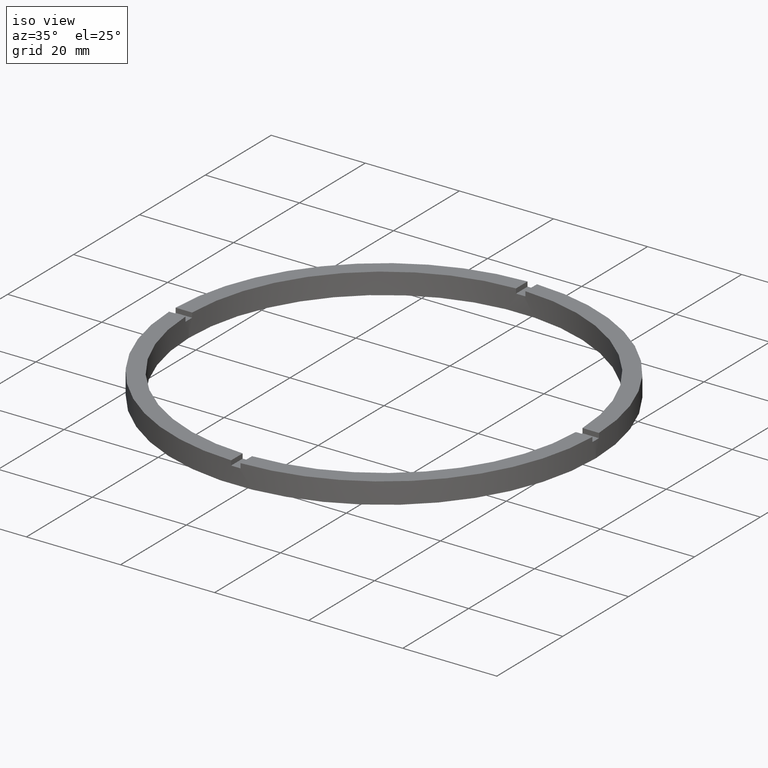
[diagram: clean part render]
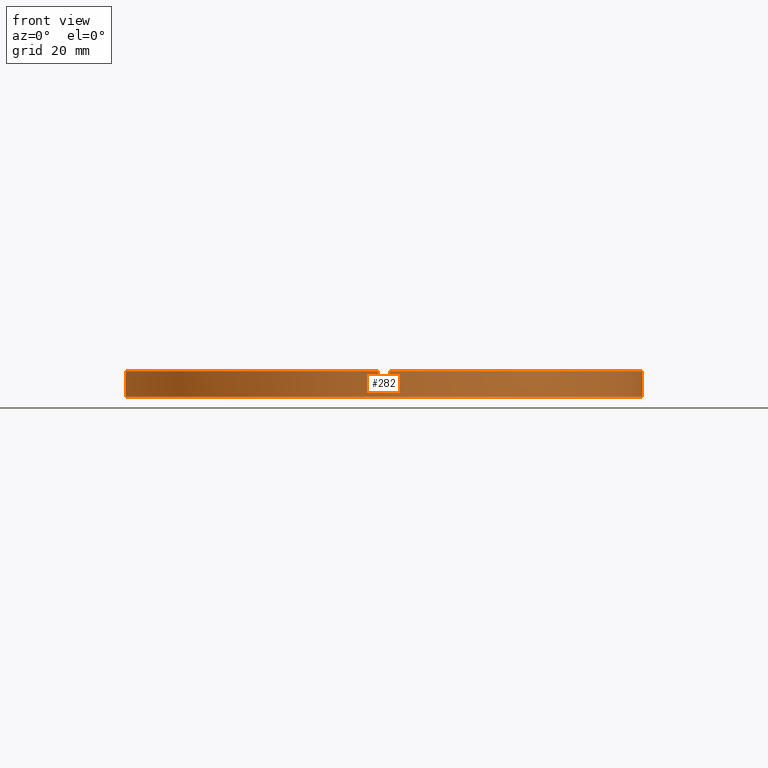
[diagram: tour spotlight — one face highlighted and labeled with its STEP entity id]
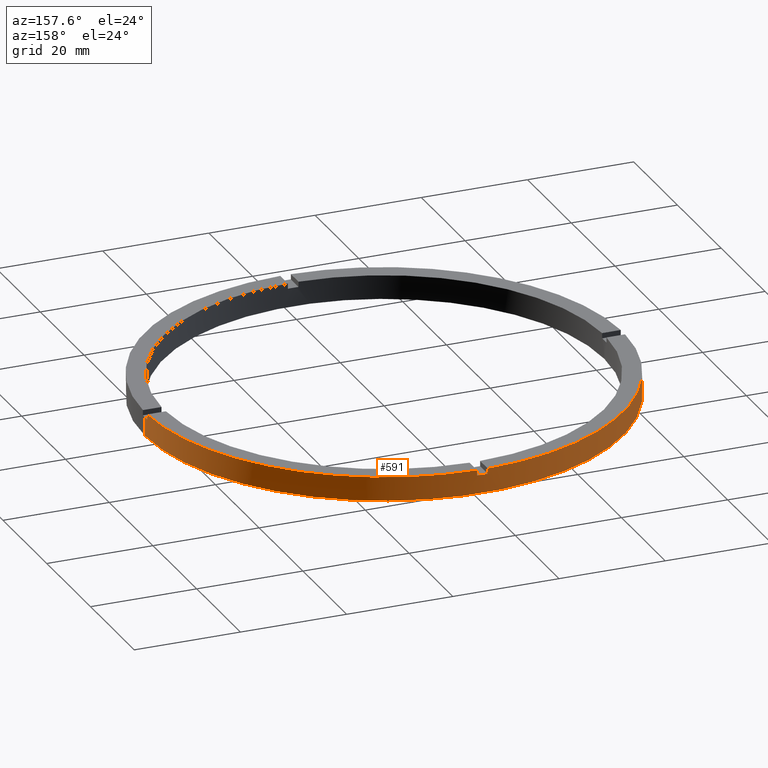
[diagram: tour spotlight — one face highlighted and labeled with its STEP entity id]
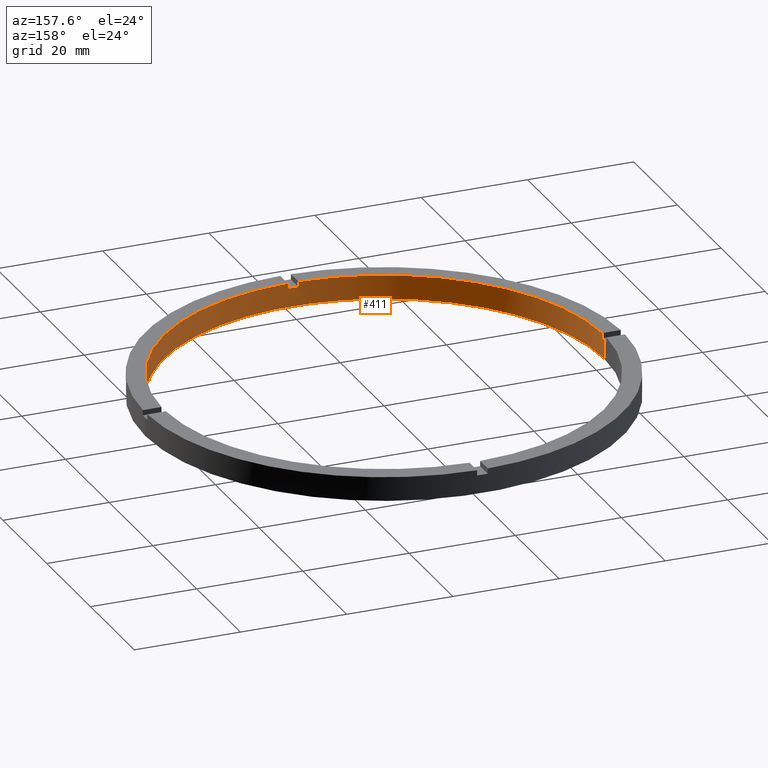
[diagram: tour spotlight — one face highlighted and labeled with its STEP entity id]
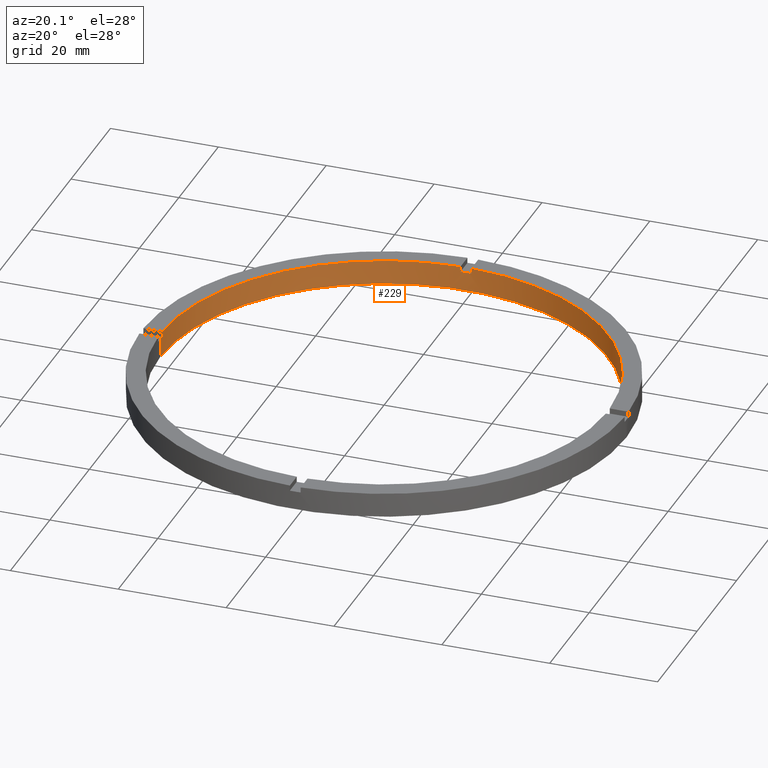
[diagram: tour spotlight — one face highlighted and labeled with its STEP entity id]
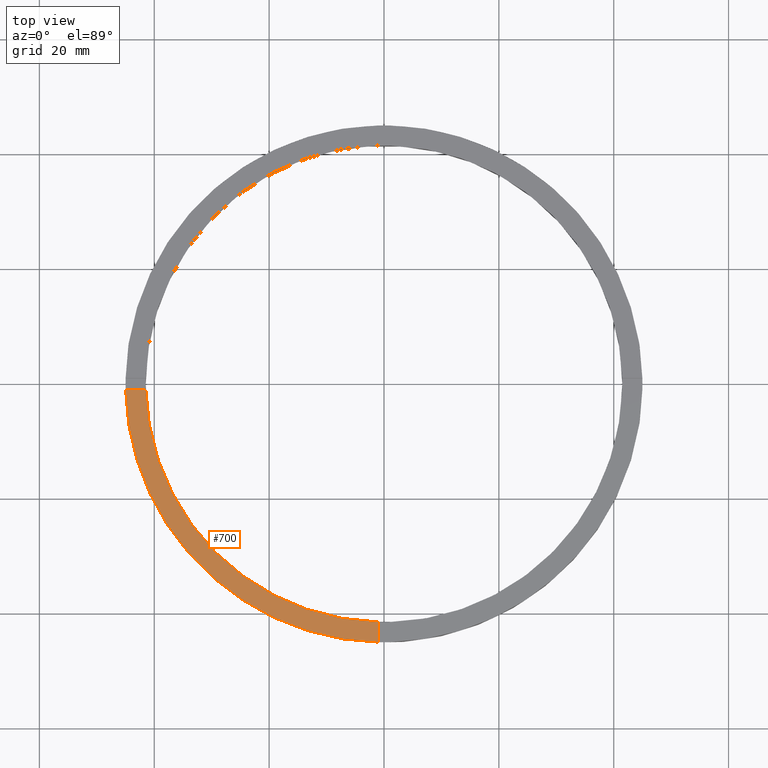
[diagram: tour spotlight — one face highlighted and labeled with its STEP entity id]
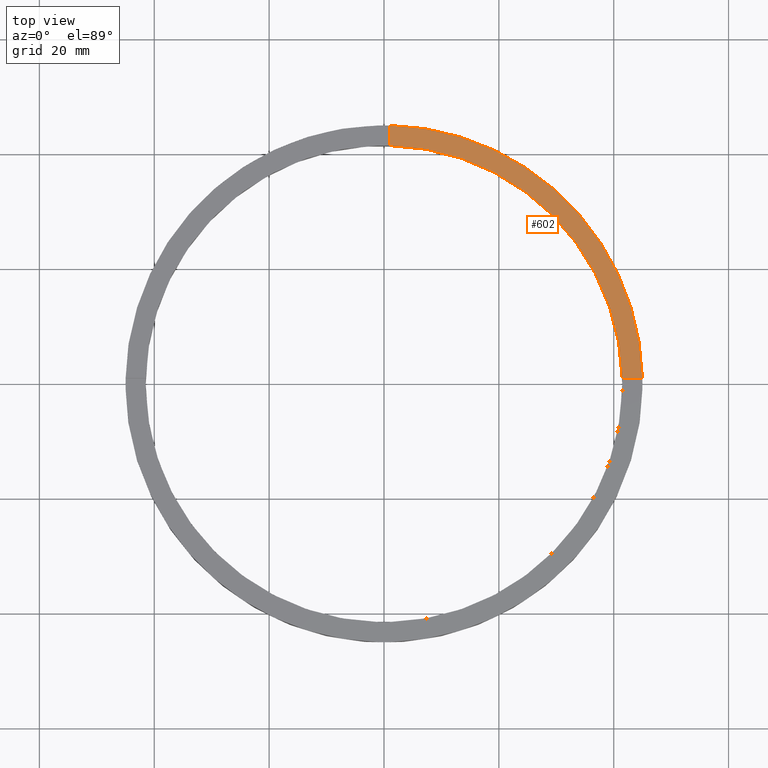
[diagram: tour spotlight — one face highlighted and labeled with its STEP entity id]
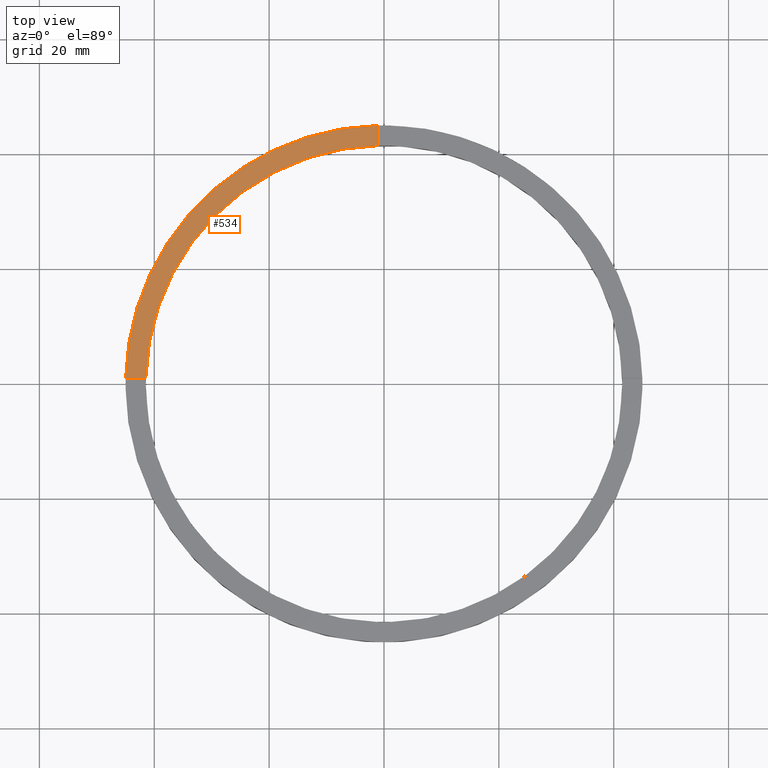
[diagram: tour spotlight — one face highlighted and labeled with its STEP entity id]
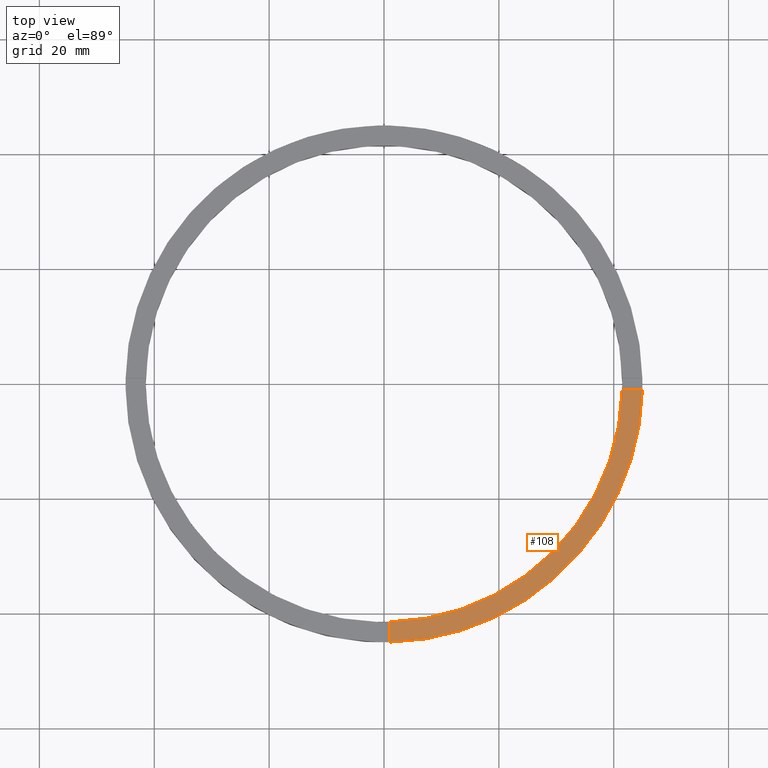
[diagram: tour spotlight — one face highlighted and labeled with its STEP entity id]
A machine part: a face-by-face anatomy tour. The part has 21 B-rep faces; the first image is the clean iso view, then the 8 largest visible faces are spotlighted one at a time (largest first), each with its STEP entity span.

Face 1 — front view, entity #282. In plain terms, the highlighted cylindrical surface (partial cylindrical patch) has radius 45 mm, axis along (-0, -0, -1).
Definition (entity closure, byte-faithful):
#2 = LINE ( 'NONE', #626, #527 ) ;
#3 = CIRCLE ( 'NONE', #704, 45.00000000000000711 ) ;
#4 = DIRECTION ( 'NONE',  ( 1.000000000000000000, 0.000000000000000000, 0.000000000000000000 ) ) ;
#15 = LINE ( 'NONE', #471, #270 ) ;
#20 = EDGE_CURVE ( 'NONE', #143, #121, #771, .T. ) ;
#23 = EDGE_CURVE ( 'NONE', #179, #383, #744, .T. ) ;
#32 = CARTESIAN_POINT ( 'NONE',  ( 0.000000000000000000, 0.000000000000000000, 3.499999999999999556 ) ) ;
#43 = DIRECTION ( 'NONE',  ( 1.000000000000000000, 0.000000000000000000, 0.000000000000000000 ) ) ;
#65 = DIRECTION ( 'NONE',  ( -0.000000000000000000, 0.000000000000000000, 1.000000000000000000 ) ) ;
#79 = DIRECTION ( 'NONE',  ( 0.000000000000000000, 0.000000000000000000, 1.000000000000000000 ) ) ;
#87 = DIRECTION ( 'NONE',  ( -0.000000000000000000, -0.000000000000000000, -1.000000000000000000 ) ) ;
#98 = CARTESIAN_POINT ( 'NONE',  ( 44.98888751680797071, -1.000000000000156097, 3.499999999999999556 ) ) ;
#104 = CARTESIAN_POINT ( 'NONE',  ( -1.000000000000158096, -44.98888751680797071, 4.500000000000000000 ) ) ;
#121 = VERTEX_POINT ( 'NONE', #343 ) ;
#124 = CARTESIAN_POINT ( 'NONE',  ( 0.000000000000000000, 0.000000000000000000, 4.500000000000000000 ) ) ;
#125 = ORIENTED_EDGE ( 'NONE', *, *, #586, .T. ) ;
#135 = ORIENTED_EDGE ( 'NONE', *, *, #205, .T. ) ;
#143 = VERTEX_POINT ( 'NONE', #752 ) ;
#165 = VERTEX_POINT ( 'NONE', #104 ) ;
#179 = VERTEX_POINT ( 'NONE', #226 ) ;
#180 = ORIENTED_EDGE ( 'NONE', *, *, #20, .F. ) ;
#183 = ORIENTED_EDGE ( 'NONE', *, *, #605, .F. ) ;
#189 = ORIENTED_EDGE ( 'NONE', *, *, #23, .F. ) ;
#193 = CARTESIAN_POINT ( 'NONE',  ( 0.000000000000000000, 0.000000000000000000, 0.000000000000000000 ) ) ;
#205 = EDGE_CURVE ( 'NONE', #405, #676, #2, .T. ) ;
#215 = DIRECTION ( 'NONE',  ( 0.000000000000000000, 0.000000000000000000, 1.000000000000000000 ) ) ;
#226 = CARTESIAN_POINT ( 'NONE',  ( 45.00000000000000711, 5.510910596163090344E-15, 3.499999999999999556 ) ) ;
#233 = VECTOR ( 'NONE', #607, 1000.000000000000000 ) ;
#234 = CARTESIAN_POINT ( 'NONE',  ( 0.000000000000000000, 0.000000000000000000, 4.500000000000000000 ) ) ;
#237 = CARTESIAN_POINT ( 'NONE',  ( -45.00000000000000711, 0.000000000000000000, 0.000000000000000000 ) ) ;
#238 = CIRCLE ( 'NONE', #678, 45.00000000000000711 ) ;
#242 = LINE ( 'NONE', #393, #498 ) ;
#268 = CIRCLE ( 'NONE', #460, 45.00000000000000711 ) ;
#270 = VECTOR ( 'NONE', #554, 1000.000000000000000 ) ;
#282 = ADVANCED_FACE ( 'NONE', ( #296 ), #494, .T. ) ;
#296 = FACE_OUTER_BOUND ( 'NONE', #715, .T. ) ;
#306 = CIRCLE ( 'NONE', #430, 45.00000000000000711 ) ;
#334 = EDGE_CURVE ( 'NONE', #476, #179, #3, .T. ) ;
#343 = CARTESIAN_POINT ( 'NONE',  ( 44.98888751680797071, -1.000000000000156097, 4.500000000000000000 ) ) ;
#366 = CARTESIAN_POINT ( 'NONE',  ( 45.00000000000000711, 5.510910596163090344E-15, 0.000000000000000000 ) ) ;
#373 = ORIENTED_EDGE ( 'NONE', *, *, #422, .T. ) ;
#381 = EDGE_CURVE ( 'NONE', #405, #165, #781, .T. ) ;
#383 = VERTEX_POINT ( 'NONE', #366 ) ;
#391 = ORIENTED_EDGE ( 'NONE', *, *, #659, .T. ) ;
#393 = CARTESIAN_POINT ( 'NONE',  ( -45.00000000000000711, 0.000000000000000000, 4.500000000000000000 ) ) ;
#405 = VERTEX_POINT ( 'NONE', #478 ) ;
#408 = DIRECTION ( 'NONE',  ( 1.000000000000000000, 0.000000000000000000, 0.000000000000000000 ) ) ;
#414 = DIRECTION ( 'NONE',  ( 1.000000000000000000, 0.000000000000000000, 0.000000000000000000 ) ) ;
#418 = CARTESIAN_POINT ( 'NONE',  ( 0.9999999999998419042, -44.98888751680797782, 4.500000000000000000 ) ) ;
#420 = AXIS2_PLACEMENT_3D ( 'NONE', #234, #87, #694 ) ;
#422 = EDGE_CURVE ( 'NONE', #472, #383, #238, .T. ) ;
#426 = DIRECTION ( 'NONE',  ( -0.000000000000000000, -0.000000000000000000, -1.000000000000000000 ) ) ;
#430 = AXIS2_PLACEMENT_3D ( 'NONE', #584, #215, #636 ) ;
#433 = ORIENTED_EDGE ( 'NONE', *, *, #751, .F. ) ;
#436 = ORIENTED_EDGE ( 'NONE', *, *, #614, .T. ) ;
#450 = DIRECTION ( 'NONE',  ( -0.000000000000000000, -0.000000000000000000, -1.000000000000000000 ) ) ;
#451 = ORIENTED_EDGE ( 'NONE', *, *, #381, .F. ) ;
#460 = AXIS2_PLACEMENT_3D ( 'NONE', #601, #65, #408 ) ;
#471 = CARTESIAN_POINT ( 'NONE',  ( -1.000000000000158096, -44.98888751680797071, 4.500000000000000000 ) ) ;
#472 = VERTEX_POINT ( 'NONE', #237 ) ;
#474 = CARTESIAN_POINT ( 'NONE',  ( -45.00000000000000711, 0.000000000000000000, 3.499999999999999556 ) ) ;
#476 = VERTEX_POINT ( 'NONE', #98 ) ;
#478 = CARTESIAN_POINT ( 'NONE',  ( -44.98888751680797071, -1.000000000000029754, 4.500000000000000000 ) ) ;
#480 = CARTESIAN_POINT ( 'NONE',  ( 44.98888751680797071, -1.000000000000156097, 4.500000000000000000 ) ) ;
#494 = CYLINDRICAL_SURFACE ( 'NONE', #420, 45.00000000000000711 ) ;
#498 = VECTOR ( 'NONE', #450, 1000.000000000000000 ) ;
#527 = VECTOR ( 'NONE', #714, 1000.000000000000000 ) ;
#533 = LINE ( 'NONE', #418, #536 ) ;
#536 = VECTOR ( 'NONE', #426, 1000.000000000000000 ) ;
#546 = AXIS2_PLACEMENT_3D ( 'NONE', #561, #79, #4 ) ;
#548 = AXIS2_PLACEMENT_3D ( 'NONE', #124, #568, #414 ) ;
#554 = DIRECTION ( 'NONE',  ( 0.000000000000000000, 0.000000000000000000, 1.000000000000000000 ) ) ;
#561 = CARTESIAN_POINT ( 'NONE',  ( 0.000000000000000000, 0.000000000000000000, 4.500000000000000000 ) ) ;
#568 = DIRECTION ( 'NONE',  ( 0.000000000000000000, 0.000000000000000000, 1.000000000000000000 ) ) ;
#584 = CARTESIAN_POINT ( 'NONE',  ( 0.000000000000000000, 0.000000000000000000, 3.499999999999999556 ) ) ;
#585 = LINE ( 'NONE', #480, #590 ) ;
#586 = EDGE_CURVE ( 'NONE', #688, #472, #242, .T. ) ;
#590 = VECTOR ( 'NONE', #609, 1000.000000000000000 ) ;
#601 = CARTESIAN_POINT ( 'NONE',  ( 0.000000000000000000, 0.000000000000000000, 3.499999999999999556 ) ) ;
#605 = EDGE_CURVE ( 'NONE', #681, #684, #268, .T. ) ;
#607 = DIRECTION ( 'NONE',  ( -0.000000000000000000, -0.000000000000000000, -1.000000000000000000 ) ) ;
#609 = DIRECTION ( 'NONE',  ( 0.000000000000000000, 0.000000000000000000, 1.000000000000000000 ) ) ;
#614 = EDGE_CURVE ( 'NONE', #681, #165, #15, .T. ) ;
#615 = EDGE_CURVE ( 'NONE', #143, #684, #533, .T. ) ;
#617 = DIRECTION ( 'NONE',  ( 0.000000000000000000, 0.000000000000000000, 1.000000000000000000 ) ) ;
#626 = CARTESIAN_POINT ( 'NONE',  ( -44.98888751680797071, -1.000000000000029754, 4.500000000000000000 ) ) ;
#636 = DIRECTION ( 'NONE',  ( 1.000000000000000000, 0.000000000000000000, 0.000000000000000000 ) ) ;
#656 = CARTESIAN_POINT ( 'NONE',  ( 0.9999999999998419042, -44.98888751680797782, 3.499999999999999556 ) ) ;
#659 = EDGE_CURVE ( 'NONE', #476, #121, #585, .T. ) ;
#676 = VERTEX_POINT ( 'NONE', #709 ) ;
#678 = AXIS2_PLACEMENT_3D ( 'NONE', #193, #617, #721 ) ;
#681 = VERTEX_POINT ( 'NONE', #775 ) ;
#684 = VERTEX_POINT ( 'NONE', #656 ) ;
#688 = VERTEX_POINT ( 'NONE', #474 ) ;
#692 = ORIENTED_EDGE ( 'NONE', *, *, #334, .F. ) ;
#694 = DIRECTION ( 'NONE',  ( -1.000000000000000000, 0.000000000000000000, 0.000000000000000000 ) ) ;
#704 = AXIS2_PLACEMENT_3D ( 'NONE', #32, #749, #43 ) ;
#709 = CARTESIAN_POINT ( 'NONE',  ( -44.98888751680797071, -1.000000000000029754, 3.499999999999999556 ) ) ;
#714 = DIRECTION ( 'NONE',  ( -0.000000000000000000, -0.000000000000000000, -1.000000000000000000 ) ) ;
#715 = EDGE_LOOP ( 'NONE', ( #189, #692, #391, #180, #720, #183, #436, #451, #135, #433, #125, #373 ) ) ;
#720 = ORIENTED_EDGE ( 'NONE', *, *, #615, .T. ) ;
#721 = DIRECTION ( 'NONE',  ( 1.000000000000000000, 0.000000000000000000, 0.000000000000000000 ) ) ;
#737 = CARTESIAN_POINT ( 'NONE',  ( 45.00000000000000711, 5.510910596163090344E-15, 4.500000000000000000 ) ) ;
#744 = LINE ( 'NONE', #737, #233 ) ;
#749 = DIRECTION ( 'NONE',  ( 0.000000000000000000, 0.000000000000000000, 1.000000000000000000 ) ) ;
#751 = EDGE_CURVE ( 'NONE', #688, #676, #306, .T. ) ;
#752 = CARTESIAN_POINT ( 'NONE',  ( 0.9999999999998419042, -44.98888751680797782, 4.500000000000000000 ) ) ;
#771 = CIRCLE ( 'NONE', #546, 45.00000000000000711 ) ;
#775 = CARTESIAN_POINT ( 'NONE',  ( -1.000000000000158096, -44.98888751680797071, 3.499999999999999556 ) ) ;
#781 = CIRCLE ( 'NONE', #548, 45.00000000000000711 ) ;

Face 2 — auxiliary view, entity #591. In plain terms, the highlighted cylindrical surface (partial cylindrical patch) has radius 45 mm, axis along (-0, -0, -1).
Definition (entity closure, byte-faithful):
#7 = AXIS2_PLACEMENT_3D ( 'NONE', #112, #518, #592 ) ;
#9 = FACE_OUTER_BOUND ( 'NONE', #356, .T. ) ;
#16 = LINE ( 'NONE', #696, #530 ) ;
#17 = VECTOR ( 'NONE', #522, 1000.000000000000000 ) ;
#23 = EDGE_CURVE ( 'NONE', #179, #383, #744, .T. ) ;
#36 = CIRCLE ( 'NONE', #279, 45.00000000000000711 ) ;
#41 = EDGE_CURVE ( 'NONE', #466, #688, #484, .T. ) ;
#50 = DIRECTION ( 'NONE',  ( -0.000000000000000000, -0.000000000000000000, -1.000000000000000000 ) ) ;
#67 = VECTOR ( 'NONE', #406, 1000.000000000000000 ) ;
#68 = VECTOR ( 'NONE', #537, 1000.000000000000000 ) ;
#91 = CARTESIAN_POINT ( 'NONE',  ( 0.000000000000000000, 0.000000000000000000, 4.500000000000000000 ) ) ;
#94 = ORIENTED_EDGE ( 'NONE', *, *, #707, .F. ) ;
#111 = EDGE_CURVE ( 'NONE', #466, #214, #542, .T. ) ;
#112 = CARTESIAN_POINT ( 'NONE',  ( 0.000000000000000000, 0.000000000000000000, 4.500000000000000000 ) ) ;
#114 = ORIENTED_EDGE ( 'NONE', *, *, #675, .T. ) ;
#119 = ORIENTED_EDGE ( 'NONE', *, *, #586, .F. ) ;
#137 = DIRECTION ( 'NONE',  ( 0.000000000000000000, 0.000000000000000000, 1.000000000000000000 ) ) ;
#148 = CARTESIAN_POINT ( 'NONE',  ( 0.000000000000000000, 0.000000000000000000, 0.000000000000000000 ) ) ;
#151 = ORIENTED_EDGE ( 'NONE', *, *, #599, .T. ) ;
#167 = CARTESIAN_POINT ( 'NONE',  ( 0.000000000000000000, 0.000000000000000000, 4.500000000000000000 ) ) ;
#179 = VERTEX_POINT ( 'NONE', #226 ) ;
#187 = VERTEX_POINT ( 'NONE', #570 ) ;
#209 = DIRECTION ( 'NONE',  ( 0.000000000000000000, 0.000000000000000000, 1.000000000000000000 ) ) ;
#214 = VERTEX_POINT ( 'NONE', #347 ) ;
#226 = CARTESIAN_POINT ( 'NONE',  ( 45.00000000000000711, 5.510910596163090344E-15, 3.499999999999999556 ) ) ;
#233 = VECTOR ( 'NONE', #607, 1000.000000000000000 ) ;
#237 = CARTESIAN_POINT ( 'NONE',  ( -45.00000000000000711, 0.000000000000000000, 0.000000000000000000 ) ) ;
#242 = LINE ( 'NONE', #393, #498 ) ;
#254 = EDGE_CURVE ( 'NONE', #445, #727, #36, .T. ) ;
#256 = CARTESIAN_POINT ( 'NONE',  ( 44.98888751680797782, 0.9999999999998439026, 4.500000000000000000 ) ) ;
#263 = CIRCLE ( 'NONE', #396, 45.00000000000000711 ) ;
#277 = DIRECTION ( 'NONE',  ( 1.000000000000000000, 0.000000000000000000, 0.000000000000000000 ) ) ;
#279 = AXIS2_PLACEMENT_3D ( 'NONE', #167, #137, #747 ) ;
#284 = DIRECTION ( 'NONE',  ( 1.000000000000000000, 0.000000000000000000, 0.000000000000000000 ) ) ;
#301 = AXIS2_PLACEMENT_3D ( 'NONE', #91, #209, #277 ) ;
#323 = LINE ( 'NONE', #465, #68 ) ;
#324 = LINE ( 'NONE', #345, #67 ) ;
#329 = CARTESIAN_POINT ( 'NONE',  ( 44.98888751680797782, 0.9999999999998439026, 3.499999999999999556 ) ) ;
#331 = CARTESIAN_POINT ( 'NONE',  ( -1.000000000000026201, 44.98888751680797071, 3.499999999999999556 ) ) ;
#345 = CARTESIAN_POINT ( 'NONE',  ( 0.9999999999999737987, 44.98888751680797071, 4.500000000000000000 ) ) ;
#347 = CARTESIAN_POINT ( 'NONE',  ( -44.98888751680797071, 0.9999999999999703570, 4.500000000000000000 ) ) ;
#356 = EDGE_LOOP ( 'NONE', ( #370, #409, #690, #119, #705, #666, #94, #151, #431, #114, #647, #416 ) ) ;
#365 = CARTESIAN_POINT ( 'NONE',  ( 0.000000000000000000, 0.000000000000000000, 3.499999999999999556 ) ) ;
#366 = CARTESIAN_POINT ( 'NONE',  ( 45.00000000000000711, 5.510910596163090344E-15, 0.000000000000000000 ) ) ;
#370 = ORIENTED_EDGE ( 'NONE', *, *, #742, .F. ) ;
#372 = CARTESIAN_POINT ( 'NONE',  ( 0.000000000000000000, 0.000000000000000000, 3.499999999999999556 ) ) ;
#383 = VERTEX_POINT ( 'NONE', #366 ) ;
#393 = CARTESIAN_POINT ( 'NONE',  ( -45.00000000000000711, 0.000000000000000000, 4.500000000000000000 ) ) ;
#396 = AXIS2_PLACEMENT_3D ( 'NONE', #372, #622, #629 ) ;
#406 = DIRECTION ( 'NONE',  ( 0.000000000000000000, 0.000000000000000000, 1.000000000000000000 ) ) ;
#409 = ORIENTED_EDGE ( 'NONE', *, *, #23, .T. ) ;
#416 = ORIENTED_EDGE ( 'NONE', *, *, #679, .T. ) ;
#431 = ORIENTED_EDGE ( 'NONE', *, *, #456, .F. ) ;
#445 = VERTEX_POINT ( 'NONE', #256 ) ;
#450 = DIRECTION ( 'NONE',  ( -0.000000000000000000, -0.000000000000000000, -1.000000000000000000 ) ) ;
#456 = EDGE_CURVE ( 'NONE', #187, #467, #263, .T. ) ;
#465 = CARTESIAN_POINT ( 'NONE',  ( 44.98888751680797782, 0.9999999999998439026, 4.500000000000000000 ) ) ;
#466 = VERTEX_POINT ( 'NONE', #748 ) ;
#467 = VERTEX_POINT ( 'NONE', #331 ) ;
#472 = VERTEX_POINT ( 'NONE', #237 ) ;
#474 = CARTESIAN_POINT ( 'NONE',  ( -45.00000000000000711, 0.000000000000000000, 3.499999999999999556 ) ) ;
#484 = CIRCLE ( 'NONE', #608, 45.00000000000000711 ) ;
#495 = CIRCLE ( 'NONE', #642, 45.00000000000000711 ) ;
#498 = VECTOR ( 'NONE', #450, 1000.000000000000000 ) ;
#514 = CARTESIAN_POINT ( 'NONE',  ( 0.000000000000000000, 0.000000000000000000, 3.499999999999999556 ) ) ;
#518 = DIRECTION ( 'NONE',  ( -0.000000000000000000, -0.000000000000000000, -1.000000000000000000 ) ) ;
#522 = DIRECTION ( 'NONE',  ( 0.000000000000000000, 0.000000000000000000, 1.000000000000000000 ) ) ;
#528 = DIRECTION ( 'NONE',  ( 1.000000000000000000, 0.000000000000000000, 0.000000000000000000 ) ) ;
#529 = CYLINDRICAL_SURFACE ( 'NONE', #7, 45.00000000000000711 ) ;
#530 = VECTOR ( 'NONE', #50, 1000.000000000000000 ) ;
#537 = DIRECTION ( 'NONE',  ( -0.000000000000000000, -0.000000000000000000, -1.000000000000000000 ) ) ;
#542 = LINE ( 'NONE', #597, #17 ) ;
#569 = CIRCLE ( 'NONE', #301, 45.00000000000000711 ) ;
#570 = CARTESIAN_POINT ( 'NONE',  ( 0.9999999999999737987, 44.98888751680797071, 3.499999999999999556 ) ) ;
#571 = CARTESIAN_POINT ( 'NONE',  ( -1.000000000000026201, 44.98888751680797071, 4.500000000000000000 ) ) ;
#573 = CIRCLE ( 'NONE', #750, 45.00000000000000711 ) ;
#577 = EDGE_CURVE ( 'NONE', #383, #472, #495, .T. ) ;
#586 = EDGE_CURVE ( 'NONE', #688, #472, #242, .T. ) ;
#591 = ADVANCED_FACE ( 'NONE', ( #9 ), #529, .T. ) ;
#592 = DIRECTION ( 'NONE',  ( -1.000000000000000000, 0.000000000000000000, 0.000000000000000000 ) ) ;
#593 = DIRECTION ( 'NONE',  ( 0.000000000000000000, 0.000000000000000000, 1.000000000000000000 ) ) ;
#597 = CARTESIAN_POINT ( 'NONE',  ( -44.98888751680797071, 0.9999999999999703570, 4.500000000000000000 ) ) ;
#599 = EDGE_CURVE ( 'NONE', #768, #467, #16, .T. ) ;
#607 = DIRECTION ( 'NONE',  ( -0.000000000000000000, -0.000000000000000000, -1.000000000000000000 ) ) ;
#608 = AXIS2_PLACEMENT_3D ( 'NONE', #365, #672, #730 ) ;
#622 = DIRECTION ( 'NONE',  ( 0.000000000000000000, -0.000000000000000000, 1.000000000000000000 ) ) ;
#629 = DIRECTION ( 'NONE',  ( 1.000000000000000000, 0.000000000000000000, 0.000000000000000000 ) ) ;
#642 = AXIS2_PLACEMENT_3D ( 'NONE', #148, #782, #284 ) ;
#647 = ORIENTED_EDGE ( 'NONE', *, *, #254, .F. ) ;
#666 = ORIENTED_EDGE ( 'NONE', *, *, #111, .T. ) ;
#672 = DIRECTION ( 'NONE',  ( 0.000000000000000000, 0.000000000000000000, 1.000000000000000000 ) ) ;
#675 = EDGE_CURVE ( 'NONE', #187, #727, #324, .T. ) ;
#679 = EDGE_CURVE ( 'NONE', #445, #703, #323, .T. ) ;
#688 = VERTEX_POINT ( 'NONE', #474 ) ;
#690 = ORIENTED_EDGE ( 'NONE', *, *, #577, .T. ) ;
#696 = CARTESIAN_POINT ( 'NONE',  ( -1.000000000000026201, 44.98888751680797071, 4.500000000000000000 ) ) ;
#703 = VERTEX_POINT ( 'NONE', #329 ) ;
#705 = ORIENTED_EDGE ( 'NONE', *, *, #41, .F. ) ;
#707 = EDGE_CURVE ( 'NONE', #768, #214, #569, .T. ) ;
#727 = VERTEX_POINT ( 'NONE', #767 ) ;
#730 = DIRECTION ( 'NONE',  ( 1.000000000000000000, 0.000000000000000000, 0.000000000000000000 ) ) ;
#737 = CARTESIAN_POINT ( 'NONE',  ( 45.00000000000000711, 5.510910596163090344E-15, 4.500000000000000000 ) ) ;
#742 = EDGE_CURVE ( 'NONE', #179, #703, #573, .T. ) ;
#744 = LINE ( 'NONE', #737, #233 ) ;
#747 = DIRECTION ( 'NONE',  ( 1.000000000000000000, 0.000000000000000000, 0.000000000000000000 ) ) ;
#748 = CARTESIAN_POINT ( 'NONE',  ( -44.98888751680797071, 0.9999999999999703570, 3.499999999999999556 ) ) ;
#750 = AXIS2_PLACEMENT_3D ( 'NONE', #514, #593, #528 ) ;
#767 = CARTESIAN_POINT ( 'NONE',  ( 0.9999999999999737987, 44.98888751680797071, 4.500000000000000000 ) ) ;
#768 = VERTEX_POINT ( 'NONE', #571 ) ;
#782 = DIRECTION ( 'NONE',  ( 0.000000000000000000, 0.000000000000000000, 1.000000000000000000 ) ) ;

Face 3 — auxiliary view, entity #411. In plain terms, the highlighted cylindrical surface (partial cylindrical patch) has radius 41.5 mm, axis along (-0, -0, -1).
Definition (entity closure, byte-faithful):
#5 = EDGE_CURVE ( 'NONE', #388, #208, #227, .T. ) ;
#8 = EDGE_CURVE ( 'NONE', #667, #736, #493, .T. ) ;
#13 = DIRECTION ( 'NONE',  ( 0.000000000000000000, 0.000000000000000000, 1.000000000000000000 ) ) ;
#21 = DIRECTION ( 'NONE',  ( -0.000000000000000000, 0.000000000000000000, 1.000000000000000000 ) ) ;
#24 = DIRECTION ( 'NONE',  ( 1.000000000000000000, 0.000000000000000000, 0.000000000000000000 ) ) ;
#29 = VECTOR ( 'NONE', #780, 1000.000000000000000 ) ;
#34 = DIRECTION ( 'NONE',  ( -0.000000000000000000, -0.000000000000000000, -1.000000000000000000 ) ) ;
#38 = CARTESIAN_POINT ( 'NONE',  ( -41.48795005781799716, -1.000000000000029088, 4.500000000000000000 ) ) ;
#56 = EDGE_CURVE ( 'NONE', #89, #218, #755, .T. ) ;
#66 = EDGE_CURVE ( 'NONE', #369, #218, #231, .T. ) ;
#70 = VECTOR ( 'NONE', #302, 1000.000000000000000 ) ;
#75 = CARTESIAN_POINT ( 'NONE',  ( 0.9999999999998414602, -41.48795005781800427, 4.500000000000000000 ) ) ;
#77 = DIRECTION ( 'NONE',  ( -0.000000000000000000, -0.000000000000000000, -1.000000000000000000 ) ) ;
#80 = DIRECTION ( 'NONE',  ( -0.000000000000000000, -0.000000000000000000, -1.000000000000000000 ) ) ;
#81 = AXIS2_PLACEMENT_3D ( 'NONE', #490, #562, #24 ) ;
#83 = CARTESIAN_POINT ( 'NONE',  ( -41.50000000000000000, 0.000000000000000000, 4.500000000000000000 ) ) ;
#89 = VERTEX_POINT ( 'NONE', #328 ) ;
#102 = AXIS2_PLACEMENT_3D ( 'NONE', #776, #665, #339 ) ;
#110 = CARTESIAN_POINT ( 'NONE',  ( 0.9999999999998414602, -41.48795005781800427, 4.500000000000000000 ) ) ;
#113 = EDGE_CURVE ( 'NONE', #616, #634, #265, .T. ) ;
#115 = ORIENTED_EDGE ( 'NONE', *, *, #330, .T. ) ;
#116 = CARTESIAN_POINT ( 'NONE',  ( 41.48795005781799006, -1.000000000000156319, 4.500000000000000000 ) ) ;
#117 = ORIENTED_EDGE ( 'NONE', *, *, #113, .T. ) ;
#130 = AXIS2_PLACEMENT_3D ( 'NONE', #625, #435, #734 ) ;
#138 = AXIS2_PLACEMENT_3D ( 'NONE', #552, #80, #545 ) ;
#157 = ORIENTED_EDGE ( 'NONE', *, *, #361, .F. ) ;
#186 = ORIENTED_EDGE ( 'NONE', *, *, #56, .T. ) ;
#190 = CARTESIAN_POINT ( 'NONE',  ( 0.000000000000000000, 0.000000000000000000, 3.499999999999999556 ) ) ;
#204 = ORIENTED_EDGE ( 'NONE', *, *, #8, .T. ) ;
#208 = VERTEX_POINT ( 'NONE', #438 ) ;
#216 = EDGE_CURVE ( 'NONE', #616, #208, #532, .T. ) ;
#218 = VERTEX_POINT ( 'NONE', #337 ) ;
#227 = CIRCLE ( 'NONE', #392, 41.50000000000000000 ) ;
#231 = CIRCLE ( 'NONE', #130, 41.50000000000000000 ) ;
#247 = CARTESIAN_POINT ( 'NONE',  ( 41.48795005781799006, -1.000000000000156319, 3.499999999999999556 ) ) ;
#249 = LINE ( 'NONE', #83, #262 ) ;
#251 = DIRECTION ( 'NONE',  ( 1.000000000000000000, 0.000000000000000000, 0.000000000000000000 ) ) ;
#253 = CYLINDRICAL_SURFACE ( 'NONE', #138, 41.50000000000000000 ) ;
#260 = FACE_OUTER_BOUND ( 'NONE', #635, .T. ) ;
#262 = VECTOR ( 'NONE', #77, 1000.000000000000000 ) ;
#265 = CIRCLE ( 'NONE', #102, 41.50000000000000000 ) ;
#271 = EDGE_CURVE ( 'NONE', #424, #736, #560, .T. ) ;
#274 = CARTESIAN_POINT ( 'NONE',  ( 0.000000000000000000, 0.000000000000000000, 4.500000000000000000 ) ) ;
#291 = AXIS2_PLACEMENT_3D ( 'NONE', #428, #481, #487 ) ;
#297 = CARTESIAN_POINT ( 'NONE',  ( 41.48795005781799006, -1.000000000000156319, 4.500000000000000000 ) ) ;
#299 = DIRECTION ( 'NONE',  ( -0.000000000000000000, -0.000000000000000000, -1.000000000000000000 ) ) ;
#302 = DIRECTION ( 'NONE',  ( 0.000000000000000000, 0.000000000000000000, 1.000000000000000000 ) ) ;
#326 = CARTESIAN_POINT ( 'NONE',  ( -41.50000000000000000, 0.000000000000000000, 0.000000000000000000 ) ) ;
#327 = VECTOR ( 'NONE', #13, 1000.000000000000000 ) ;
#328 = CARTESIAN_POINT ( 'NONE',  ( 41.50000000000000000, 5.082284216461515748E-15, 3.499999999999999556 ) ) ;
#330 = EDGE_CURVE ( 'NONE', #424, #724, #770, .T. ) ;
#335 = CARTESIAN_POINT ( 'NONE',  ( -1.000000000000158540, -41.48795005781799006, 4.500000000000000000 ) ) ;
#337 = CARTESIAN_POINT ( 'NONE',  ( 41.50000000000000000, 5.082284216461515748E-15, 0.000000000000000000 ) ) ;
#339 = DIRECTION ( 'NONE',  ( 1.000000000000000000, 0.000000000000000000, 0.000000000000000000 ) ) ;
#353 = CARTESIAN_POINT ( 'NONE',  ( -41.50000000000000000, 0.000000000000000000, 3.499999999999999556 ) ) ;
#361 = EDGE_CURVE ( 'NONE', #667, #369, #249, .T. ) ;
#362 = CARTESIAN_POINT ( 'NONE',  ( -41.48795005781799716, -1.000000000000029088, 4.500000000000000000 ) ) ;
#364 = CARTESIAN_POINT ( 'NONE',  ( 41.50000000000000000, 5.082284216461515748E-15, 4.500000000000000000 ) ) ;
#367 = AXIS2_PLACEMENT_3D ( 'NONE', #274, #581, #628 ) ;
#369 = VERTEX_POINT ( 'NONE', #326 ) ;
#388 = VERTEX_POINT ( 'NONE', #726 ) ;
#392 = AXIS2_PLACEMENT_3D ( 'NONE', #190, #21, #251 ) ;
#404 = EDGE_CURVE ( 'NONE', #649, #89, #510, .T. ) ;
#411 = ADVANCED_FACE ( 'NONE', ( #260 ), #253, .F. ) ;
#413 = ORIENTED_EDGE ( 'NONE', *, *, #271, .F. ) ;
#424 = VERTEX_POINT ( 'NONE', #362 ) ;
#427 = ORIENTED_EDGE ( 'NONE', *, *, #216, .F. ) ;
#428 = CARTESIAN_POINT ( 'NONE',  ( 0.000000000000000000, 0.000000000000000000, 3.499999999999999556 ) ) ;
#435 = DIRECTION ( 'NONE',  ( 0.000000000000000000, 0.000000000000000000, 1.000000000000000000 ) ) ;
#438 = CARTESIAN_POINT ( 'NONE',  ( 0.9999999999998414602, -41.48795005781800427, 3.499999999999999556 ) ) ;
#446 = CARTESIAN_POINT ( 'NONE',  ( -41.48795005781799716, -1.000000000000029088, 3.499999999999999556 ) ) ;
#481 = DIRECTION ( 'NONE',  ( 0.000000000000000000, 0.000000000000000000, 1.000000000000000000 ) ) ;
#487 = DIRECTION ( 'NONE',  ( 1.000000000000000000, 0.000000000000000000, 0.000000000000000000 ) ) ;
#490 = CARTESIAN_POINT ( 'NONE',  ( 0.000000000000000000, 0.000000000000000000, 3.499999999999999556 ) ) ;
#493 = CIRCLE ( 'NONE', #291, 41.50000000000000000 ) ;
#496 = VECTOR ( 'NONE', #34, 1000.000000000000000 ) ;
#510 = CIRCLE ( 'NONE', #81, 41.50000000000000000 ) ;
#532 = LINE ( 'NONE', #110, #551 ) ;
#545 = DIRECTION ( 'NONE',  ( -1.000000000000000000, 0.000000000000000000, 0.000000000000000000 ) ) ;
#551 = VECTOR ( 'NONE', #299, 1000.000000000000000 ) ;
#552 = CARTESIAN_POINT ( 'NONE',  ( 0.000000000000000000, 0.000000000000000000, 4.500000000000000000 ) ) ;
#560 = LINE ( 'NONE', #38, #29 ) ;
#562 = DIRECTION ( 'NONE',  ( 0.000000000000000000, 0.000000000000000000, 1.000000000000000000 ) ) ;
#581 = DIRECTION ( 'NONE',  ( 0.000000000000000000, 0.000000000000000000, 1.000000000000000000 ) ) ;
#583 = LINE ( 'NONE', #728, #327 ) ;
#587 = LINE ( 'NONE', #297, #70 ) ;
#616 = VERTEX_POINT ( 'NONE', #75 ) ;
#625 = CARTESIAN_POINT ( 'NONE',  ( 0.000000000000000000, 0.000000000000000000, 0.000000000000000000 ) ) ;
#628 = DIRECTION ( 'NONE',  ( 1.000000000000000000, 0.000000000000000000, 0.000000000000000000 ) ) ;
#634 = VERTEX_POINT ( 'NONE', #116 ) ;
#635 = EDGE_LOOP ( 'NONE', ( #733, #186, #641, #157, #204, #413, #115, #729, #682, #427, #117, #712 ) ) ;
#641 = ORIENTED_EDGE ( 'NONE', *, *, #66, .F. ) ;
#643 = EDGE_CURVE ( 'NONE', #388, #724, #583, .T. ) ;
#649 = VERTEX_POINT ( 'NONE', #247 ) ;
#665 = DIRECTION ( 'NONE',  ( 0.000000000000000000, 0.000000000000000000, 1.000000000000000000 ) ) ;
#667 = VERTEX_POINT ( 'NONE', #353 ) ;
#682 = ORIENTED_EDGE ( 'NONE', *, *, #5, .T. ) ;
#686 = EDGE_CURVE ( 'NONE', #649, #634, #587, .T. ) ;
#712 = ORIENTED_EDGE ( 'NONE', *, *, #686, .F. ) ;
#724 = VERTEX_POINT ( 'NONE', #335 ) ;
#726 = CARTESIAN_POINT ( 'NONE',  ( -1.000000000000158540, -41.48795005781799006, 3.499999999999999556 ) ) ;
#728 = CARTESIAN_POINT ( 'NONE',  ( -1.000000000000158540, -41.48795005781799006, 4.500000000000000000 ) ) ;
#729 = ORIENTED_EDGE ( 'NONE', *, *, #643, .F. ) ;
#733 = ORIENTED_EDGE ( 'NONE', *, *, #404, .T. ) ;
#734 = DIRECTION ( 'NONE',  ( 1.000000000000000000, 0.000000000000000000, 0.000000000000000000 ) ) ;
#736 = VERTEX_POINT ( 'NONE', #446 ) ;
#755 = LINE ( 'NONE', #364, #496 ) ;
#770 = CIRCLE ( 'NONE', #367, 41.50000000000000000 ) ;
#776 = CARTESIAN_POINT ( 'NONE',  ( 0.000000000000000000, 0.000000000000000000, 4.500000000000000000 ) ) ;
#780 = DIRECTION ( 'NONE',  ( -0.000000000000000000, -0.000000000000000000, -1.000000000000000000 ) ) ;

Face 4 — auxiliary view, entity #229. In plain terms, the highlighted cylindrical surface (partial cylindrical patch) has radius 41.5 mm, axis along (-0, -0, -1).
Definition (entity closure, byte-faithful):
#10 = CARTESIAN_POINT ( 'NONE',  ( 0.9999999999999737987, 41.48795005781799716, 4.500000000000000000 ) ) ;
#14 = CIRCLE ( 'NONE', #603, 41.50000000000000000 ) ;
#28 = DIRECTION ( 'NONE',  ( 0.000000000000000000, 0.000000000000000000, 1.000000000000000000 ) ) ;
#30 = LINE ( 'NONE', #505, #33 ) ;
#33 = VECTOR ( 'NONE', #146, 1000.000000000000000 ) ;
#34 = DIRECTION ( 'NONE',  ( -0.000000000000000000, -0.000000000000000000, -1.000000000000000000 ) ) ;
#52 = CARTESIAN_POINT ( 'NONE',  ( 0.000000000000000000, 0.000000000000000000, 4.500000000000000000 ) ) ;
#54 = EDGE_CURVE ( 'NONE', #162, #378, #236, .T. ) ;
#56 = EDGE_CURVE ( 'NONE', #89, #218, #755, .T. ) ;
#60 = DIRECTION ( 'NONE',  ( 0.000000000000000000, 0.000000000000000000, 1.000000000000000000 ) ) ;
#76 = VERTEX_POINT ( 'NONE', #78 ) ;
#77 = DIRECTION ( 'NONE',  ( -0.000000000000000000, -0.000000000000000000, -1.000000000000000000 ) ) ;
#78 = CARTESIAN_POINT ( 'NONE',  ( -1.000000000000026201, 41.48795005781799716, 4.500000000000000000 ) ) ;
#83 = CARTESIAN_POINT ( 'NONE',  ( -41.50000000000000000, 0.000000000000000000, 4.500000000000000000 ) ) ;
#84 = DIRECTION ( 'NONE',  ( -0.000000000000000000, -0.000000000000000000, -1.000000000000000000 ) ) ;
#89 = VERTEX_POINT ( 'NONE', #328 ) ;
#96 = EDGE_CURVE ( 'NONE', #718, #206, #482, .T. ) ;
#105 = EDGE_CURVE ( 'NONE', #718, #443, #504, .T. ) ;
#106 = CARTESIAN_POINT ( 'NONE',  ( 0.000000000000000000, 0.000000000000000000, 3.499999999999999556 ) ) ;
#118 = CARTESIAN_POINT ( 'NONE',  ( 0.000000000000000000, 0.000000000000000000, 3.499999999999999556 ) ) ;
#122 = VERTEX_POINT ( 'NONE', #702 ) ;
#134 = DIRECTION ( 'NONE',  ( -0.000000000000000000, -0.000000000000000000, -1.000000000000000000 ) ) ;
#144 = AXIS2_PLACEMENT_3D ( 'NONE', #52, #395, #150 ) ;
#146 = DIRECTION ( 'NONE',  ( -0.000000000000000000, -0.000000000000000000, -1.000000000000000000 ) ) ;
#150 = DIRECTION ( 'NONE',  ( 1.000000000000000000, 0.000000000000000000, 0.000000000000000000 ) ) ;
#155 = VERTEX_POINT ( 'NONE', #594 ) ;
#160 = CARTESIAN_POINT ( 'NONE',  ( 41.48795005781800427, 0.9999999999998436806, 3.499999999999999556 ) ) ;
#162 = VERTEX_POINT ( 'NONE', #298 ) ;
#170 = ORIENTED_EDGE ( 'NONE', *, *, #415, .F. ) ;
#172 = ORIENTED_EDGE ( 'NONE', *, *, #105, .T. ) ;
#174 = ORIENTED_EDGE ( 'NONE', *, *, #470, .T. ) ;
#177 = EDGE_CURVE ( 'NONE', #122, #667, #14, .T. ) ;
#181 = ORIENTED_EDGE ( 'NONE', *, *, #220, .F. ) ;
#195 = CARTESIAN_POINT ( 'NONE',  ( 0.000000000000000000, 0.000000000000000000, 4.500000000000000000 ) ) ;
#206 = VERTEX_POINT ( 'NONE', #160 ) ;
#218 = VERTEX_POINT ( 'NONE', #337 ) ;
#220 = EDGE_CURVE ( 'NONE', #76, #378, #30, .T. ) ;
#223 = CARTESIAN_POINT ( 'NONE',  ( 0.000000000000000000, 0.000000000000000000, 3.499999999999999556 ) ) ;
#229 = ADVANCED_FACE ( 'NONE', ( #287 ), #294, .F. ) ;
#236 = CIRCLE ( 'NONE', #340, 41.50000000000000000 ) ;
#241 = LINE ( 'NONE', #606, #523 ) ;
#245 = AXIS2_PLACEMENT_3D ( 'NONE', #539, #84, #389 ) ;
#249 = LINE ( 'NONE', #83, #262 ) ;
#262 = VECTOR ( 'NONE', #77, 1000.000000000000000 ) ;
#273 = CIRCLE ( 'NONE', #610, 41.50000000000000000 ) ;
#287 = FACE_OUTER_BOUND ( 'NONE', #613, .T. ) ;
#294 = CYLINDRICAL_SURFACE ( 'NONE', #245, 41.50000000000000000 ) ;
#298 = CARTESIAN_POINT ( 'NONE',  ( 0.9999999999999737987, 41.48795005781799716, 3.499999999999999556 ) ) ;
#300 = DIRECTION ( 'NONE',  ( 0.000000000000000000, 0.000000000000000000, 1.000000000000000000 ) ) ;
#304 = CARTESIAN_POINT ( 'NONE',  ( -1.000000000000026201, 41.48795005781799716, 3.499999999999999556 ) ) ;
#309 = CARTESIAN_POINT ( 'NONE',  ( 0.000000000000000000, 0.000000000000000000, 0.000000000000000000 ) ) ;
#310 = DIRECTION ( 'NONE',  ( 1.000000000000000000, 0.000000000000000000, 0.000000000000000000 ) ) ;
#322 = CARTESIAN_POINT ( 'NONE',  ( 41.48795005781800427, 0.9999999999998436806, 4.500000000000000000 ) ) ;
#326 = CARTESIAN_POINT ( 'NONE',  ( -41.50000000000000000, 0.000000000000000000, 0.000000000000000000 ) ) ;
#328 = CARTESIAN_POINT ( 'NONE',  ( 41.50000000000000000, 5.082284216461515748E-15, 3.499999999999999556 ) ) ;
#337 = CARTESIAN_POINT ( 'NONE',  ( 41.50000000000000000, 5.082284216461515748E-15, 0.000000000000000000 ) ) ;
#338 = CARTESIAN_POINT ( 'NONE',  ( 0.9999999999999737987, 41.48795005781799716, 4.500000000000000000 ) ) ;
#340 = AXIS2_PLACEMENT_3D ( 'NONE', #118, #358, #310 ) ;
#353 = CARTESIAN_POINT ( 'NONE',  ( -41.50000000000000000, 0.000000000000000000, 3.499999999999999556 ) ) ;
#358 = DIRECTION ( 'NONE',  ( 0.000000000000000000, -0.000000000000000000, 1.000000000000000000 ) ) ;
#360 = AXIS2_PLACEMENT_3D ( 'NONE', #223, #60, #723 ) ;
#361 = EDGE_CURVE ( 'NONE', #667, #369, #249, .T. ) ;
#363 = DIRECTION ( 'NONE',  ( 0.000000000000000000, 0.000000000000000000, 1.000000000000000000 ) ) ;
#364 = CARTESIAN_POINT ( 'NONE',  ( 41.50000000000000000, 5.082284216461515748E-15, 4.500000000000000000 ) ) ;
#369 = VERTEX_POINT ( 'NONE', #326 ) ;
#378 = VERTEX_POINT ( 'NONE', #304 ) ;
#380 = ORIENTED_EDGE ( 'NONE', *, *, #56, .F. ) ;
#385 = ORIENTED_EDGE ( 'NONE', *, *, #639, .F. ) ;
#389 = DIRECTION ( 'NONE',  ( -1.000000000000000000, 0.000000000000000000, 0.000000000000000000 ) ) ;
#394 = ORIENTED_EDGE ( 'NONE', *, *, #361, .T. ) ;
#395 = DIRECTION ( 'NONE',  ( 0.000000000000000000, 0.000000000000000000, 1.000000000000000000 ) ) ;
#415 = EDGE_CURVE ( 'NONE', #122, #155, #241, .T. ) ;
#442 = DIRECTION ( 'NONE',  ( 0.000000000000000000, 0.000000000000000000, 1.000000000000000000 ) ) ;
#443 = VERTEX_POINT ( 'NONE', #10 ) ;
#470 = EDGE_CURVE ( 'NONE', #89, #206, #492, .T. ) ;
#473 = EDGE_CURVE ( 'NONE', #162, #443, #524, .T. ) ;
#482 = LINE ( 'NONE', #322, #764 ) ;
#486 = DIRECTION ( 'NONE',  ( 1.000000000000000000, 0.000000000000000000, 0.000000000000000000 ) ) ;
#492 = CIRCLE ( 'NONE', #360, 41.50000000000000000 ) ;
#496 = VECTOR ( 'NONE', #34, 1000.000000000000000 ) ;
#504 = CIRCLE ( 'NONE', #574, 41.50000000000000000 ) ;
#505 = CARTESIAN_POINT ( 'NONE',  ( -1.000000000000026201, 41.48795005781799716, 4.500000000000000000 ) ) ;
#508 = VECTOR ( 'NONE', #300, 1000.000000000000000 ) ;
#523 = VECTOR ( 'NONE', #28, 1000.000000000000000 ) ;
#524 = LINE ( 'NONE', #338, #508 ) ;
#539 = CARTESIAN_POINT ( 'NONE',  ( 0.000000000000000000, 0.000000000000000000, 4.500000000000000000 ) ) ;
#565 = CIRCLE ( 'NONE', #144, 41.50000000000000000 ) ;
#574 = AXIS2_PLACEMENT_3D ( 'NONE', #195, #677, #740 ) ;
#594 = CARTESIAN_POINT ( 'NONE',  ( -41.48795005781799716, 0.9999999999999709122, 4.500000000000000000 ) ) ;
#603 = AXIS2_PLACEMENT_3D ( 'NONE', #106, #442, #633 ) ;
#606 = CARTESIAN_POINT ( 'NONE',  ( -41.48795005781799716, 0.9999999999999709122, 4.500000000000000000 ) ) ;
#610 = AXIS2_PLACEMENT_3D ( 'NONE', #309, #363, #486 ) ;
#613 = EDGE_LOOP ( 'NONE', ( #380, #174, #638, #172, #722, #708, #181, #657, #170, #645, #394, #385 ) ) ;
#633 = DIRECTION ( 'NONE',  ( 1.000000000000000000, 0.000000000000000000, 0.000000000000000000 ) ) ;
#638 = ORIENTED_EDGE ( 'NONE', *, *, #96, .F. ) ;
#639 = EDGE_CURVE ( 'NONE', #218, #369, #273, .T. ) ;
#645 = ORIENTED_EDGE ( 'NONE', *, *, #177, .T. ) ;
#657 = ORIENTED_EDGE ( 'NONE', *, *, #732, .T. ) ;
#667 = VERTEX_POINT ( 'NONE', #353 ) ;
#677 = DIRECTION ( 'NONE',  ( 0.000000000000000000, 0.000000000000000000, 1.000000000000000000 ) ) ;
#702 = CARTESIAN_POINT ( 'NONE',  ( -41.48795005781799716, 0.9999999999999709122, 3.499999999999999556 ) ) ;
#708 = ORIENTED_EDGE ( 'NONE', *, *, #54, .T. ) ;
#718 = VERTEX_POINT ( 'NONE', #760 ) ;
#722 = ORIENTED_EDGE ( 'NONE', *, *, #473, .F. ) ;
#723 = DIRECTION ( 'NONE',  ( 1.000000000000000000, 0.000000000000000000, 0.000000000000000000 ) ) ;
#732 = EDGE_CURVE ( 'NONE', #76, #155, #565, .T. ) ;
#740 = DIRECTION ( 'NONE',  ( 1.000000000000000000, 0.000000000000000000, 0.000000000000000000 ) ) ;
#755 = LINE ( 'NONE', #364, #496 ) ;
#760 = CARTESIAN_POINT ( 'NONE',  ( 41.48795005781800427, 0.9999999999998436806, 4.500000000000000000 ) ) ;
#764 = VECTOR ( 'NONE', #134, 1000.000000000000000 ) ;

Face 5 — top view, entity #700. In plain terms, the highlighted planar face has unit normal (0, 0, 1).
Definition (entity closure, byte-faithful):
#71 = FACE_OUTER_BOUND ( 'NONE', #464, .T. ) ;
#104 = CARTESIAN_POINT ( 'NONE',  ( -1.000000000000158096, -44.98888751680797071, 4.500000000000000000 ) ) ;
#124 = CARTESIAN_POINT ( 'NONE',  ( 0.000000000000000000, 0.000000000000000000, 4.500000000000000000 ) ) ;
#132 = EDGE_CURVE ( 'NONE', #724, #165, #255, .T. ) ;
#154 = DIRECTION ( 'NONE',  ( 1.301042606982605074E-16, -1.000000000000000000, 0.000000000000000000 ) ) ;
#165 = VERTEX_POINT ( 'NONE', #104 ) ;
#194 = ORIENTED_EDGE ( 'NONE', *, *, #381, .T. ) ;
#255 = LINE ( 'NONE', #783, #276 ) ;
#274 = CARTESIAN_POINT ( 'NONE',  ( 0.000000000000000000, 0.000000000000000000, 4.500000000000000000 ) ) ;
#276 = VECTOR ( 'NONE', #154, 1000.000000000000000 ) ;
#330 = EDGE_CURVE ( 'NONE', #424, #724, #770, .T. ) ;
#335 = CARTESIAN_POINT ( 'NONE',  ( -1.000000000000158540, -41.48795005781799006, 4.500000000000000000 ) ) ;
#351 = CARTESIAN_POINT ( 'NONE',  ( -35.00000000000019185, -1.000000000000027978, 4.500000000000000000 ) ) ;
#362 = CARTESIAN_POINT ( 'NONE',  ( -41.48795005781799716, -1.000000000000029088, 4.500000000000000000 ) ) ;
#367 = AXIS2_PLACEMENT_3D ( 'NONE', #274, #581, #628 ) ;
#368 = ORIENTED_EDGE ( 'NONE', *, *, #132, .F. ) ;
#381 = EDGE_CURVE ( 'NONE', #405, #165, #781, .T. ) ;
#405 = VERTEX_POINT ( 'NONE', #478 ) ;
#414 = DIRECTION ( 'NONE',  ( 1.000000000000000000, 0.000000000000000000, 0.000000000000000000 ) ) ;
#424 = VERTEX_POINT ( 'NONE', #362 ) ;
#453 = CARTESIAN_POINT ( 'NONE',  ( 0.000000000000000000, 0.000000000000000000, 4.500000000000000000 ) ) ;
#458 = ORIENTED_EDGE ( 'NONE', *, *, #330, .F. ) ;
#464 = EDGE_LOOP ( 'NONE', ( #368, #458, #673, #194 ) ) ;
#469 = AXIS2_PLACEMENT_3D ( 'NONE', #453, #627, #521 ) ;
#478 = CARTESIAN_POINT ( 'NONE',  ( -44.98888751680797071, -1.000000000000029754, 4.500000000000000000 ) ) ;
#521 = DIRECTION ( 'NONE',  ( 1.000000000000000000, 0.000000000000000000, -0.000000000000000000 ) ) ;
#548 = AXIS2_PLACEMENT_3D ( 'NONE', #124, #568, #414 ) ;
#567 = EDGE_CURVE ( 'NONE', #405, #424, #778, .T. ) ;
#568 = DIRECTION ( 'NONE',  ( 0.000000000000000000, 0.000000000000000000, 1.000000000000000000 ) ) ;
#581 = DIRECTION ( 'NONE',  ( 0.000000000000000000, 0.000000000000000000, 1.000000000000000000 ) ) ;
#596 = PLANE ( 'NONE',  #469 ) ;
#627 = DIRECTION ( 'NONE',  ( 0.000000000000000000, 0.000000000000000000, 1.000000000000000000 ) ) ;
#628 = DIRECTION ( 'NONE',  ( 1.000000000000000000, 0.000000000000000000, 0.000000000000000000 ) ) ;
#673 = ORIENTED_EDGE ( 'NONE', *, *, #567, .F. ) ;
#700 = ADVANCED_FACE ( 'NONE', ( #71 ), #596, .T. ) ;
#724 = VERTEX_POINT ( 'NONE', #335 ) ;
#754 = VECTOR ( 'NONE', #773, 1000.000000000000000 ) ;
#770 = CIRCLE ( 'NONE', #367, 41.50000000000000000 ) ;
#773 = DIRECTION ( 'NONE',  ( 1.000000000000000000, 1.951563910473907735E-16, -0.000000000000000000 ) ) ;
#778 = LINE ( 'NONE', #351, #754 ) ;
#781 = CIRCLE ( 'NONE', #548, 45.00000000000000711 ) ;
#783 = CARTESIAN_POINT ( 'NONE',  ( -1.000000000000159428, -35.00000000000018474, 4.500000000000000000 ) ) ;

Face 6 — top view, entity #602. In plain terms, the highlighted planar face has unit normal (0, 0, 1).
Definition (entity closure, byte-faithful):
#10 = CARTESIAN_POINT ( 'NONE',  ( 0.9999999999999737987, 41.48795005781799716, 4.500000000000000000 ) ) ;
#12 = FACE_OUTER_BOUND ( 'NONE', #475, .T. ) ;
#36 = CIRCLE ( 'NONE', #279, 45.00000000000000711 ) ;
#88 = EDGE_CURVE ( 'NONE', #443, #727, #483, .T. ) ;
#97 = ORIENTED_EDGE ( 'NONE', *, *, #254, .T. ) ;
#105 = EDGE_CURVE ( 'NONE', #718, #443, #504, .T. ) ;
#137 = DIRECTION ( 'NONE',  ( 0.000000000000000000, 0.000000000000000000, 1.000000000000000000 ) ) ;
#142 = CARTESIAN_POINT ( 'NONE',  ( 34.99999999999999289, 0.9999999999998432365, 4.500000000000000000 ) ) ;
#167 = CARTESIAN_POINT ( 'NONE',  ( 0.000000000000000000, 0.000000000000000000, 4.500000000000000000 ) ) ;
#188 = DIRECTION ( 'NONE',  ( 0.000000000000000000, 1.000000000000000000, 0.000000000000000000 ) ) ;
#195 = CARTESIAN_POINT ( 'NONE',  ( 0.000000000000000000, 0.000000000000000000, 4.500000000000000000 ) ) ;
#246 = LINE ( 'NONE', #142, #503 ) ;
#254 = EDGE_CURVE ( 'NONE', #445, #727, #36, .T. ) ;
#256 = CARTESIAN_POINT ( 'NONE',  ( 44.98888751680797782, 0.9999999999998439026, 4.500000000000000000 ) ) ;
#257 = CARTESIAN_POINT ( 'NONE',  ( 0.9999999999999737987, 35.00000000000000000, 4.500000000000000000 ) ) ;
#279 = AXIS2_PLACEMENT_3D ( 'NONE', #167, #137, #747 ) ;
#283 = EDGE_CURVE ( 'NONE', #445, #718, #246, .T. ) ;
#352 = ORIENTED_EDGE ( 'NONE', *, *, #105, .F. ) ;
#421 = ORIENTED_EDGE ( 'NONE', *, *, #88, .F. ) ;
#443 = VERTEX_POINT ( 'NONE', #10 ) ;
#445 = VERTEX_POINT ( 'NONE', #256 ) ;
#475 = EDGE_LOOP ( 'NONE', ( #421, #352, #685, #97 ) ) ;
#483 = LINE ( 'NONE', #257, #500 ) ;
#500 = VECTOR ( 'NONE', #188, 1000.000000000000000 ) ;
#503 = VECTOR ( 'NONE', #516, 1000.000000000000000 ) ;
#504 = CIRCLE ( 'NONE', #574, 41.50000000000000000 ) ;
#516 = DIRECTION ( 'NONE',  ( -1.000000000000000000, -6.505213034913025371E-17, -0.000000000000000000 ) ) ;
#535 = DIRECTION ( 'NONE',  ( 1.000000000000000000, 0.000000000000000000, -0.000000000000000000 ) ) ;
#574 = AXIS2_PLACEMENT_3D ( 'NONE', #195, #677, #740 ) ;
#602 = ADVANCED_FACE ( 'NONE', ( #12 ), #646, .T. ) ;
#646 = PLANE ( 'NONE',  #719 ) ;
#677 = DIRECTION ( 'NONE',  ( 0.000000000000000000, 0.000000000000000000, 1.000000000000000000 ) ) ;
#685 = ORIENTED_EDGE ( 'NONE', *, *, #283, .F. ) ;
#701 = CARTESIAN_POINT ( 'NONE',  ( 0.000000000000000000, 0.000000000000000000, 4.500000000000000000 ) ) ;
#718 = VERTEX_POINT ( 'NONE', #760 ) ;
#719 = AXIS2_PLACEMENT_3D ( 'NONE', #701, #765, #535 ) ;
#727 = VERTEX_POINT ( 'NONE', #767 ) ;
#740 = DIRECTION ( 'NONE',  ( 1.000000000000000000, 0.000000000000000000, 0.000000000000000000 ) ) ;
#747 = DIRECTION ( 'NONE',  ( 1.000000000000000000, 0.000000000000000000, 0.000000000000000000 ) ) ;
#760 = CARTESIAN_POINT ( 'NONE',  ( 41.48795005781800427, 0.9999999999998436806, 4.500000000000000000 ) ) ;
#765 = DIRECTION ( 'NONE',  ( 0.000000000000000000, 0.000000000000000000, 1.000000000000000000 ) ) ;
#767 = CARTESIAN_POINT ( 'NONE',  ( 0.9999999999999737987, 44.98888751680797071, 4.500000000000000000 ) ) ;

Face 7 — top view, entity #534. In plain terms, the highlighted planar face has unit normal (0, 0, 1).
Definition (entity closure, byte-faithful):
#1 = VECTOR ( 'NONE', #761, 1000.000000000000000 ) ;
#26 = VECTOR ( 'NONE', #648, 1000.000000000000000 ) ;
#52 = CARTESIAN_POINT ( 'NONE',  ( 0.000000000000000000, 0.000000000000000000, 4.500000000000000000 ) ) ;
#53 = AXIS2_PLACEMENT_3D ( 'NONE', #103, #289, #604 ) ;
#76 = VERTEX_POINT ( 'NONE', #78 ) ;
#78 = CARTESIAN_POINT ( 'NONE',  ( -1.000000000000026201, 41.48795005781799716, 4.500000000000000000 ) ) ;
#91 = CARTESIAN_POINT ( 'NONE',  ( 0.000000000000000000, 0.000000000000000000, 4.500000000000000000 ) ) ;
#92 = ORIENTED_EDGE ( 'NONE', *, *, #732, .F. ) ;
#95 = CARTESIAN_POINT ( 'NONE',  ( -35.00000000000019185, 0.9999999999999720224, 4.500000000000000000 ) ) ;
#99 = ORIENTED_EDGE ( 'NONE', *, *, #147, .F. ) ;
#103 = CARTESIAN_POINT ( 'NONE',  ( 0.000000000000000000, 0.000000000000000000, 4.500000000000000000 ) ) ;
#144 = AXIS2_PLACEMENT_3D ( 'NONE', #52, #395, #150 ) ;
#147 = EDGE_CURVE ( 'NONE', #155, #214, #267, .T. ) ;
#150 = DIRECTION ( 'NONE',  ( 1.000000000000000000, 0.000000000000000000, 0.000000000000000000 ) ) ;
#155 = VERTEX_POINT ( 'NONE', #594 ) ;
#156 = ORIENTED_EDGE ( 'NONE', *, *, #164, .F. ) ;
#164 = EDGE_CURVE ( 'NONE', #768, #76, #517, .T. ) ;
#209 = DIRECTION ( 'NONE',  ( 0.000000000000000000, 0.000000000000000000, 1.000000000000000000 ) ) ;
#214 = VERTEX_POINT ( 'NONE', #347 ) ;
#250 = FACE_OUTER_BOUND ( 'NONE', #461, .T. ) ;
#267 = LINE ( 'NONE', #95, #26 ) ;
#277 = DIRECTION ( 'NONE',  ( 1.000000000000000000, 0.000000000000000000, 0.000000000000000000 ) ) ;
#289 = DIRECTION ( 'NONE',  ( 0.000000000000000000, 0.000000000000000000, 1.000000000000000000 ) ) ;
#301 = AXIS2_PLACEMENT_3D ( 'NONE', #91, #209, #277 ) ;
#347 = CARTESIAN_POINT ( 'NONE',  ( -44.98888751680797071, 0.9999999999999703570, 4.500000000000000000 ) ) ;
#395 = DIRECTION ( 'NONE',  ( 0.000000000000000000, 0.000000000000000000, 1.000000000000000000 ) ) ;
#461 = EDGE_LOOP ( 'NONE', ( #156, #612, #99, #92 ) ) ;
#477 = PLANE ( 'NONE',  #53 ) ;
#517 = LINE ( 'NONE', #697, #1 ) ;
#534 = ADVANCED_FACE ( 'NONE', ( #250 ), #477, .T. ) ;
#565 = CIRCLE ( 'NONE', #144, 41.50000000000000000 ) ;
#569 = CIRCLE ( 'NONE', #301, 45.00000000000000711 ) ;
#571 = CARTESIAN_POINT ( 'NONE',  ( -1.000000000000026201, 44.98888751680797071, 4.500000000000000000 ) ) ;
#594 = CARTESIAN_POINT ( 'NONE',  ( -41.48795005781799716, 0.9999999999999709122, 4.500000000000000000 ) ) ;
#604 = DIRECTION ( 'NONE',  ( 1.000000000000000000, 0.000000000000000000, -0.000000000000000000 ) ) ;
#612 = ORIENTED_EDGE ( 'NONE', *, *, #707, .T. ) ;
#648 = DIRECTION ( 'NONE',  ( -1.000000000000000000, -1.951563910473907735E-16, 0.000000000000000000 ) ) ;
#697 = CARTESIAN_POINT ( 'NONE',  ( -1.000000000000026201, 35.00000000000000000, 4.500000000000000000 ) ) ;
#707 = EDGE_CURVE ( 'NONE', #768, #214, #569, .T. ) ;
#732 = EDGE_CURVE ( 'NONE', #76, #155, #565, .T. ) ;
#761 = DIRECTION ( 'NONE',  ( -0.000000000000000000, -1.000000000000000000, -0.000000000000000000 ) ) ;
#768 = VERTEX_POINT ( 'NONE', #571 ) ;

Face 8 — top view, entity #108. In plain terms, the highlighted planar face has unit normal (0, 0, 1).
Definition (entity closure, byte-faithful):
#4 = DIRECTION ( 'NONE',  ( 1.000000000000000000, 0.000000000000000000, 0.000000000000000000 ) ) ;
#6 = VECTOR ( 'NONE', #169, 1000.000000000000000 ) ;
#11 = FACE_OUTER_BOUND ( 'NONE', #200, .T. ) ;
#20 = EDGE_CURVE ( 'NONE', #143, #121, #771, .T. ) ;
#75 = CARTESIAN_POINT ( 'NONE',  ( 0.9999999999998414602, -41.48795005781800427, 4.500000000000000000 ) ) ;
#79 = DIRECTION ( 'NONE',  ( 0.000000000000000000, 0.000000000000000000, 1.000000000000000000 ) ) ;
#100 = ORIENTED_EDGE ( 'NONE', *, *, #293, .F. ) ;
#102 = AXIS2_PLACEMENT_3D ( 'NONE', #776, #665, #339 ) ;
#108 = ADVANCED_FACE ( 'NONE', ( #11 ), #502, .T. ) ;
#113 = EDGE_CURVE ( 'NONE', #616, #634, #265, .T. ) ;
#116 = CARTESIAN_POINT ( 'NONE',  ( 41.48795005781799006, -1.000000000000156319, 4.500000000000000000 ) ) ;
#121 = VERTEX_POINT ( 'NONE', #343 ) ;
#143 = VERTEX_POINT ( 'NONE', #752 ) ;
#152 = AXIS2_PLACEMENT_3D ( 'NONE', #572, #386, #711 ) ;
#169 = DIRECTION ( 'NONE',  ( 1.000000000000000000, 6.505213034913025371E-17, 0.000000000000000000 ) ) ;
#200 = EDGE_LOOP ( 'NONE', ( #419, #674, #100, #447 ) ) ;
#213 = CARTESIAN_POINT ( 'NONE',  ( 34.99999999999999289, -1.000000000000156763, 4.500000000000000000 ) ) ;
#265 = CIRCLE ( 'NONE', #102, 41.50000000000000000 ) ;
#293 = EDGE_CURVE ( 'NONE', #143, #616, #506, .T. ) ;
#339 = DIRECTION ( 'NONE',  ( 1.000000000000000000, 0.000000000000000000, 0.000000000000000000 ) ) ;
#343 = CARTESIAN_POINT ( 'NONE',  ( 44.98888751680797071, -1.000000000000156097, 4.500000000000000000 ) ) ;
#386 = DIRECTION ( 'NONE',  ( 0.000000000000000000, 0.000000000000000000, 1.000000000000000000 ) ) ;
#407 = CARTESIAN_POINT ( 'NONE',  ( 0.9999999999998406830, -35.00000000000018474, 4.500000000000000000 ) ) ;
#419 = ORIENTED_EDGE ( 'NONE', *, *, #489, .F. ) ;
#447 = ORIENTED_EDGE ( 'NONE', *, *, #20, .T. ) ;
#489 = EDGE_CURVE ( 'NONE', #634, #121, #526, .T. ) ;
#502 = PLANE ( 'NONE',  #152 ) ;
#506 = LINE ( 'NONE', #407, #519 ) ;
#519 = VECTOR ( 'NONE', #741, 1000.000000000000000 ) ;
#526 = LINE ( 'NONE', #213, #6 ) ;
#546 = AXIS2_PLACEMENT_3D ( 'NONE', #561, #79, #4 ) ;
#561 = CARTESIAN_POINT ( 'NONE',  ( 0.000000000000000000, 0.000000000000000000, 4.500000000000000000 ) ) ;
#572 = CARTESIAN_POINT ( 'NONE',  ( 0.000000000000000000, 0.000000000000000000, 4.500000000000000000 ) ) ;
#616 = VERTEX_POINT ( 'NONE', #75 ) ;
#634 = VERTEX_POINT ( 'NONE', #116 ) ;
#665 = DIRECTION ( 'NONE',  ( 0.000000000000000000, 0.000000000000000000, 1.000000000000000000 ) ) ;
#674 = ORIENTED_EDGE ( 'NONE', *, *, #113, .F. ) ;
#711 = DIRECTION ( 'NONE',  ( 1.000000000000000000, 0.000000000000000000, -0.000000000000000000 ) ) ;
#741 = DIRECTION ( 'NONE',  ( -1.301042606982605074E-16, 1.000000000000000000, -0.000000000000000000 ) ) ;
#752 = CARTESIAN_POINT ( 'NONE',  ( 0.9999999999998419042, -44.98888751680797782, 4.500000000000000000 ) ) ;
#771 = CIRCLE ( 'NONE', #546, 45.00000000000000711 ) ;
#776 = CARTESIAN_POINT ( 'NONE',  ( 0.000000000000000000, 0.000000000000000000, 4.500000000000000000 ) ) ;